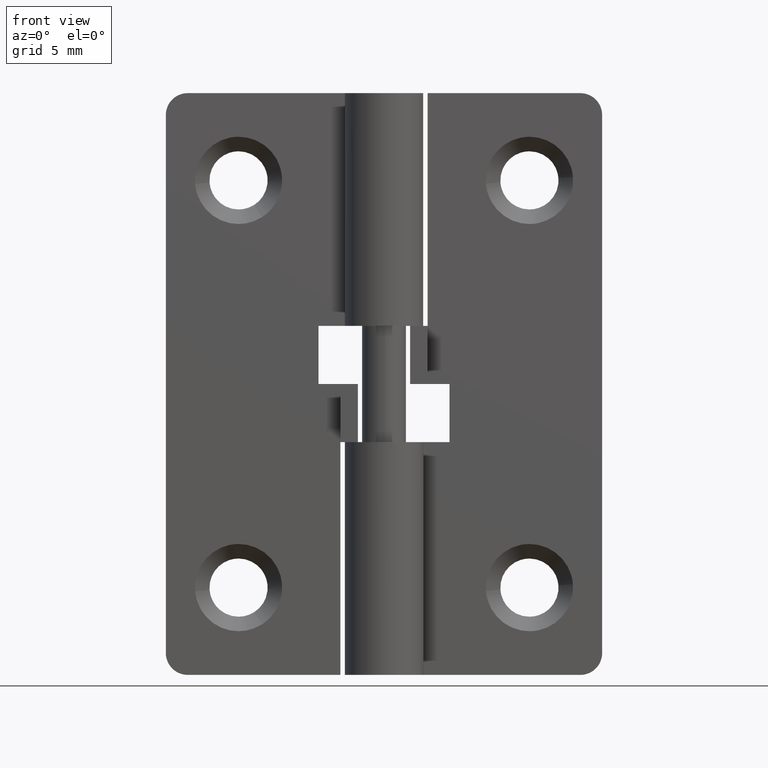
[diagram: clean part render]
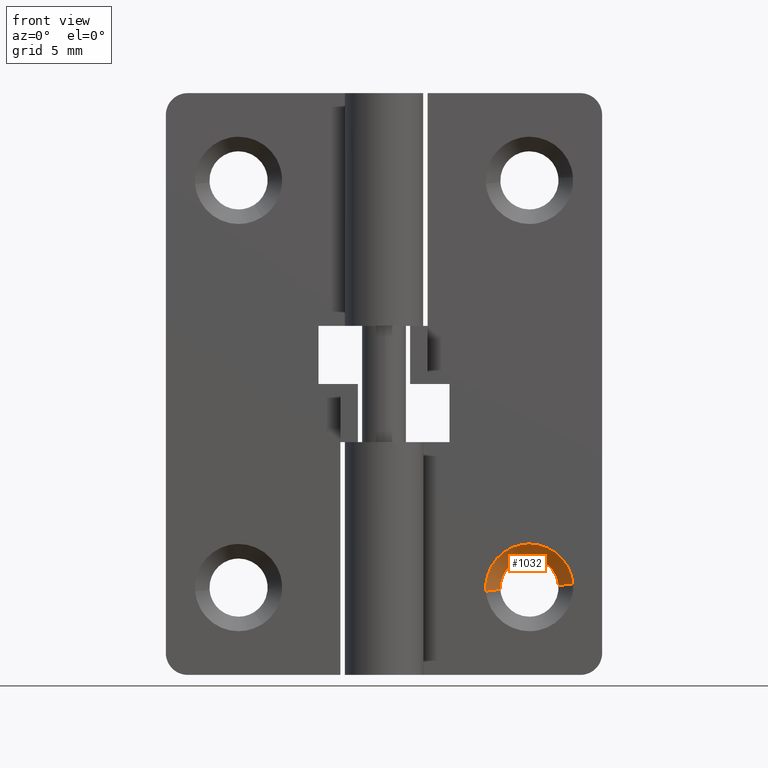
[diagram: same view with one face highlighted and labeled with its STEP entity id]
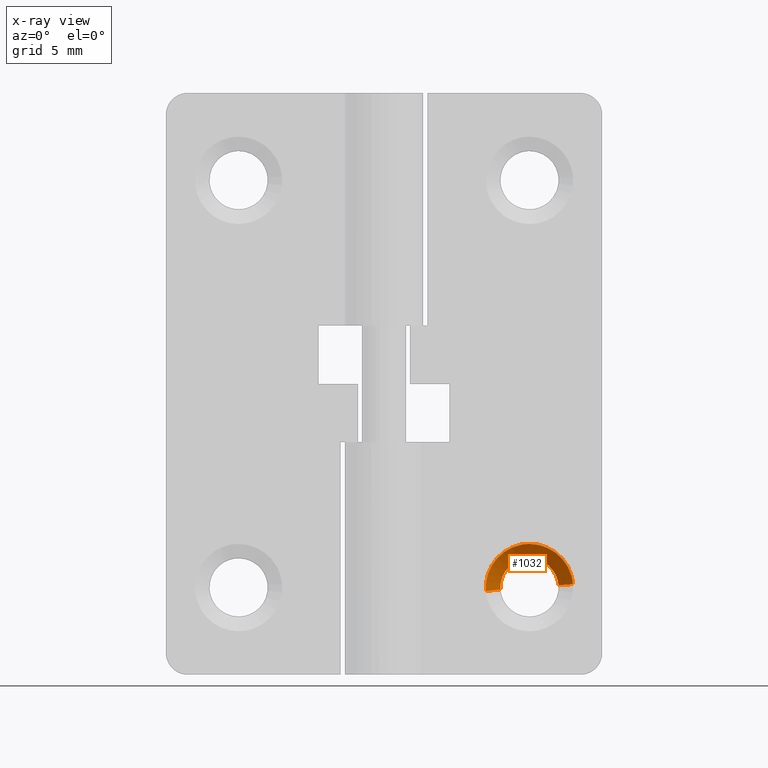
[diagram: x-ray of the same camera — body ghosted, the highlighted face saturated]
A machine part, front view. The second image highlights one B-rep face of the part: STEP entity #1032.
The next image is the same camera in x-ray: the body ghosted, the highlighted face saturated — about 0% of this face is hidden behind the body in this view.
In plain terms, the highlighted face is a freeform B-spline surface patch.
Its self-contained STEP definition (entity closure, byte-faithful):
#837=CARTESIAN_POINT('',(8.003730392787135,2.499999999999739,5.877896090464112));
#838=VERTEX_POINT('',#837);
#882=CARTESIAN_POINT('',(11.993834667483990,2.499999999955608,6.156911191796178));
#883=VERTEX_POINT('',#882);
#899=CARTESIAN_POINT('',(10.0,2.500000000000000,7.999992999999790));
#900=VERTEX_POINT('',#899);
#901=CARTESIAN_POINT('',(10.0,2.500000000000000,7.999992999999790));
#902=CARTESIAN_POINT('',(11.848780982689119,2.500000000000000,7.999992999999791));
#903=CARTESIAN_POINT('',(11.993834667483991,2.499999999955608,6.156911191796179));
#911=(BOUNDED_CURVE()B_SPLINE_CURVE(2,(#901,#902,#903),.UNSPECIFIED.,.F.,.U.)B_SPLINE_CURVE_WITH_KNOTS((3,3),(0.0,0.236331300574781),.UNSPECIFIED.)CURVE()GEOMETRIC_REPRESENTATION_ITEM()RATIONAL_B_SPLINE_CURVE((1.0,0.723120658673131,0.969723356050804))REPRESENTATION_ITEM(''));
#912=EDGE_CURVE('',#900,#883,#911,.T.);
#914=CARTESIAN_POINT('',(8.003730392787135,2.499999999999739,5.877896090464112));
#915=CARTESIAN_POINT('',(8.0,2.500000000000000,5.938887558407308));
#916=CARTESIAN_POINT('',(8.0,2.500000000000000,5.999992999999790));
#917=CARTESIAN_POINT('',(8.0,2.500000000000000,7.999992999999791));
#918=CARTESIAN_POINT('',(10.0,2.500000000000000,7.999992999999790));
#926=(BOUNDED_CURVE()B_SPLINE_CURVE(2,(#914,#915,#916,#917,#918),.UNSPECIFIED.,.F.,.U.)B_SPLINE_CURVE_WITH_KNOTS((3,2,3),(0.739332976895577,0.750000000000000,1.0),.UNSPECIFIED.)CURVE()GEOMETRIC_REPRESENTATION_ITEM()RATIONAL_B_SPLINE_CURVE((0.976072073078677,0.987502805071153,1.0,0.707106781186548,1.0))REPRESENTATION_ITEM(''));
#927=EDGE_CURVE('',#838,#900,#926,.T.);
#966=CARTESIAN_POINT('',(11.968911734122960,2.525000000000000,6.154949714062288));
#967=CARTESIAN_POINT('',(11.813955020060460,2.525000000000000,8.123861448185245));
#968=CARTESIAN_POINT('',(9.845043285937503,2.525000000000000,7.968904734122747));
#969=CARTESIAN_POINT('',(7.876131551814546,2.525000000000000,7.813948020060249));
#970=CARTESIAN_POINT('',(8.031088265877044,2.525000000000000,5.845036285937293));
#971=CARTESIAN_POINT('',(13.016298007876291,1.474375000000031,6.237380801511353));
#972=CARTESIAN_POINT('',(12.778910206364731,1.474375000000031,9.253678809387647));
#973=CARTESIAN_POINT('',(9.762612198488437,1.474375000000031,9.016291007876085));
#974=CARTESIAN_POINT('',(6.746314190612144,1.474375000000031,8.778903206364522));
#975=CARTESIAN_POINT('',(6.983701992123707,1.474375000000031,5.762605198488227));
#983=(BOUNDED_SURFACE()B_SPLINE_SURFACE(2,1,((#966,#971),(#967,#972),(#968,#973),(#969,#974),(#970,#975)),.UNSPECIFIED.,.F.,.F.,.U.)B_SPLINE_SURFACE_WITH_KNOTS((3,2,3),(2,2),(0.0,5.013019638620381,10.026039277240759),(0.0,1.0),.UNSPECIFIED.)GEOMETRIC_REPRESENTATION_ITEM()RATIONAL_B_SPLINE_SURFACE(((1.0,1.0),(0.707106781186548,0.707106781186548),(1.0,1.0),(0.707106781186548,0.707106781186548),(1.0,1.0)))REPRESENTATION_ITEM('')SURFACE());
#984=ORIENTED_EDGE('',*,*,#912,.T.);
#985=CARTESIAN_POINT('',(12.990752001211590,1.499999999969431,6.235370287418227));
#986=VERTEX_POINT('',#985);
#987=CARTESIAN_POINT('',(11.993834667483990,2.499999999955608,6.156911191796178));
#988=CARTESIAN_POINT('',(12.990752001211590,1.499999999969431,6.235370287418227));
#989=QUASI_UNIFORM_CURVE('',1,(#987,#988),.UNSPECIFIED.,.F.,.U.);
#990=EDGE_CURVE('',#883,#986,#989,.T.);
#991=ORIENTED_EDGE('',*,*,#990,.T.);
#992=CARTESIAN_POINT('',(10.0,1.500000000000030,8.999992999999790));
#993=VERTEX_POINT('',#992);
#994=CARTESIAN_POINT('',(10.0,1.500000000000030,8.999992999999790));
#995=CARTESIAN_POINT('',(12.773171474542121,1.500000000000030,8.999992999999790));
#996=CARTESIAN_POINT('',(12.990752001211588,1.499999999969431,6.235370287418227));
#1004=(BOUNDED_CURVE()B_SPLINE_CURVE(2,(#994,#995,#996),.UNSPECIFIED.,.F.,.U.)B_SPLINE_CURVE_WITH_KNOTS((3,3),(0.0,0.236331300606114),.UNSPECIFIED.)CURVE()GEOMETRIC_REPRESENTATION_ITEM()RATIONAL_B_SPLINE_CURVE((1.0,0.723120658636423,0.969723356116193))REPRESENTATION_ITEM(''));
#1005=EDGE_CURVE('',#993,#986,#1004,.T.);
#1006=ORIENTED_EDGE('',*,*,#1005,.F.);
#1007=CARTESIAN_POINT('',(7.009247998788410,1.499999999969432,5.764615712581353));
#1008=VERTEX_POINT('',#1007);
#1009=CARTESIAN_POINT('',(7.009247998788410,1.499999999969432,5.764615712581353));
#1010=CARTESIAN_POINT('',(6.999999999999999,1.500000000000030,5.882122678743202));
#1011=CARTESIAN_POINT('',(7.0,1.500000000000030,5.999992999999790));
#1012=CARTESIAN_POINT('',(6.999999999999999,1.500000000000031,8.999992999999790));
#1013=CARTESIAN_POINT('',(10.0,1.500000000000030,8.999992999999790));
#1021=(BOUNDED_CURVE()B_SPLINE_CURVE(2,(#1009,#1010,#1011,#1012,#1013),.UNSPECIFIED.,.F.,.U.)B_SPLINE_CURVE_WITH_KNOTS((3,2,3),(0.736331300606114,0.750000000000000,1.0),.UNSPECIFIED.)CURVE()GEOMETRIC_REPRESENTATION_ITEM()RATIONAL_B_SPLINE_CURVE((0.969723356116193,0.983986122550125,1.0,0.707106781186548,1.0))REPRESENTATION_ITEM(''));
#1022=EDGE_CURVE('',#1008,#993,#1021,.T.);
#1023=ORIENTED_EDGE('',*,*,#1022,.F.);
#1024=CARTESIAN_POINT('',(8.003730392787135,2.499999999999739,5.877896090464112));
#1025=CARTESIAN_POINT('',(7.009247998788410,1.499999999969432,5.764615712581353));
#1026=QUASI_UNIFORM_CURVE('',1,(#1024,#1025),.UNSPECIFIED.,.F.,.U.);
#1027=EDGE_CURVE('',#838,#1008,#1026,.T.);
#1028=ORIENTED_EDGE('',*,*,#1027,.F.);
#1029=ORIENTED_EDGE('',*,*,#927,.T.);
#1030=EDGE_LOOP('',(#984,#991,#1006,#1023,#1028,#1029));
#1031=FACE_OUTER_BOUND('',#1030,.T.);
#1032=ADVANCED_FACE('',(#1031),#983,.F.);